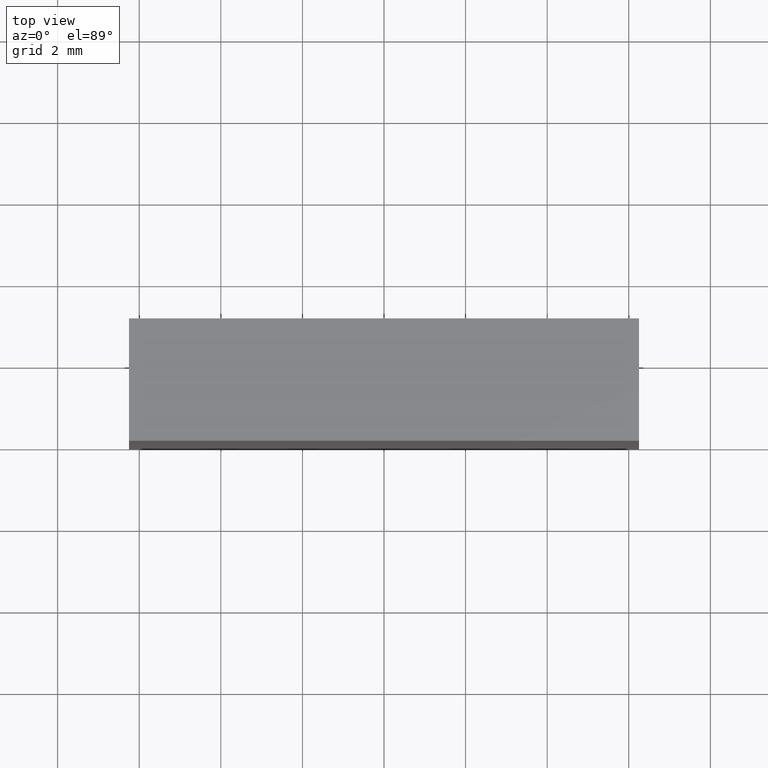
[diagram: clean part render]
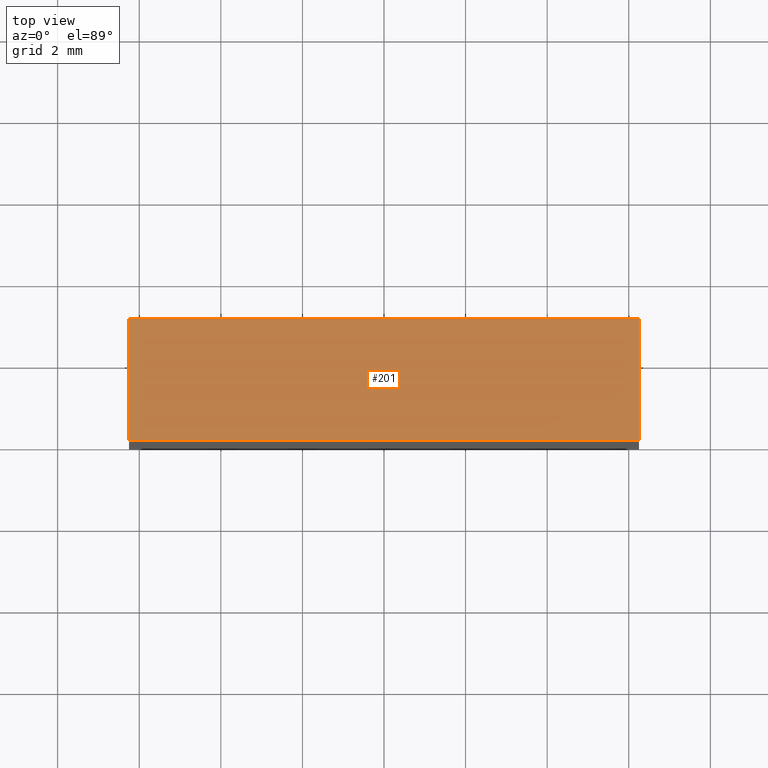
[diagram: same view with one face highlighted and labeled with its STEP entity id]
A machine part, top view. The second image highlights one B-rep face of the part: STEP entity #201.
In plain terms, the highlighted planar face has unit normal (0, 0, -1).
Its self-contained STEP definition (entity closure, byte-faithful):
#5 = LINE ( 'NONE', #94, #185 ) ;
#14 = DIRECTION ( 'NONE',  ( 1.000000000000000000, 0.0000000000000000000, 0.0000000000000000000 ) ) ;
#18 = VECTOR ( 'NONE', #14, 1000.000000000000000 ) ;
#20 = EDGE_CURVE ( 'NONE', #79, #114, #150, .T. ) ;
#24 = EDGE_CURVE ( 'NONE', #104, #48, #5, .T. ) ;
#27 = DIRECTION ( 'NONE',  ( -1.000000000000000000, 0.0000000000000000000, -0.0000000000000000000 ) ) ;
#35 = EDGE_LOOP ( 'NONE', ( #175, #133, #196, #144 ) ) ;
#36 = EDGE_CURVE ( 'NONE', #114, #48, #158, .T. ) ;
#42 = PLANE ( 'NONE',  #89 ) ;
#48 = VERTEX_POINT ( 'NONE', #170 ) ;
#58 = CARTESIAN_POINT ( 'NONE',  ( 6.249999999999999100, 3.000000000000000000, 6.249999999999997300 ) ) ;
#60 = CARTESIAN_POINT ( 'NONE',  ( -6.250000000000000900, 3.000000000000000000, 6.249999999999997300 ) ) ;
#79 = VERTEX_POINT ( 'NONE', #60 ) ;
#89 = AXIS2_PLACEMENT_3D ( 'NONE', #182, #139, #27 ) ;
#90 = DIRECTION ( 'NONE',  ( -0.0000000000000000000, -1.000000000000000000, -0.0000000000000000000 ) ) ;
#93 = DIRECTION ( 'NONE',  ( -0.0000000000000000000, -1.000000000000000000, -0.0000000000000000000 ) ) ;
#94 = CARTESIAN_POINT ( 'NONE',  ( -6.250000000000000900, 0.0000000000000000000, 6.249999999999997300 ) ) ;
#104 = VERTEX_POINT ( 'NONE', #169 ) ;
#114 = VERTEX_POINT ( 'NONE', #58 ) ;
#127 = CARTESIAN_POINT ( 'NONE',  ( -6.250000000000000900, 3.000000000000000000, 6.249999999999997300 ) ) ;
#129 = VECTOR ( 'NONE', #90, 1000.000000000000000 ) ;
#132 = LINE ( 'NONE', #184, #129 ) ;
#133 = ORIENTED_EDGE ( 'NONE', *, *, #36, .F. ) ;
#139 = DIRECTION ( 'NONE',  ( 0.0000000000000000000, 0.0000000000000000000, -1.000000000000000000 ) ) ;
#144 = ORIENTED_EDGE ( 'NONE', *, *, #154, .T. ) ;
#150 = LINE ( 'NONE', #127, #18 ) ;
#154 = EDGE_CURVE ( 'NONE', #79, #104, #132, .T. ) ;
#158 = LINE ( 'NONE', #160, #164 ) ;
#160 = CARTESIAN_POINT ( 'NONE',  ( 6.249999999999999100, 3.000000000000000000, 6.249999999999997300 ) ) ;
#164 = VECTOR ( 'NONE', #93, 1000.000000000000000 ) ;
#169 = CARTESIAN_POINT ( 'NONE',  ( -6.250000000000000900, 0.0000000000000000000, 6.249999999999997300 ) ) ;
#170 = CARTESIAN_POINT ( 'NONE',  ( 6.249999999999999100, 0.0000000000000000000, 6.249999999999997300 ) ) ;
#173 = FACE_OUTER_BOUND ( 'NONE', #35, .T. ) ;
#175 = ORIENTED_EDGE ( 'NONE', *, *, #24, .T. ) ;
#182 = CARTESIAN_POINT ( 'NONE',  ( -6.250000000000000900, 3.000000000000000000, 6.249999999999997300 ) ) ;
#184 = CARTESIAN_POINT ( 'NONE',  ( -6.250000000000000900, 3.000000000000000000, 6.249999999999997300 ) ) ;
#185 = VECTOR ( 'NONE', #199, 1000.000000000000000 ) ;
#196 = ORIENTED_EDGE ( 'NONE', *, *, #20, .F. ) ;
#199 = DIRECTION ( 'NONE',  ( 1.000000000000000000, 0.0000000000000000000, 0.0000000000000000000 ) ) ;
#201 = ADVANCED_FACE ( 'NONE', ( #173 ), #42, .F. ) ;